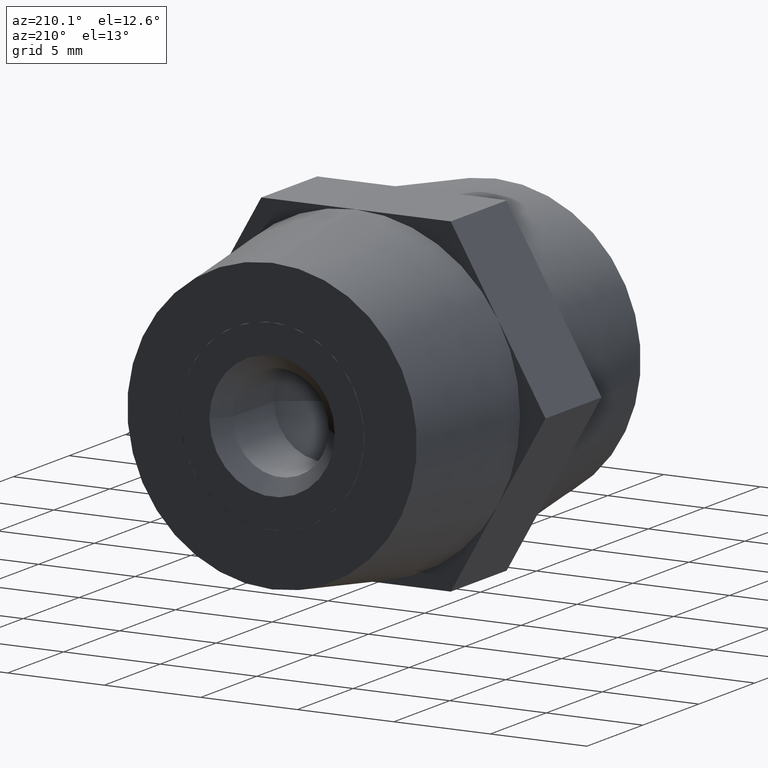
[diagram: clean part render]
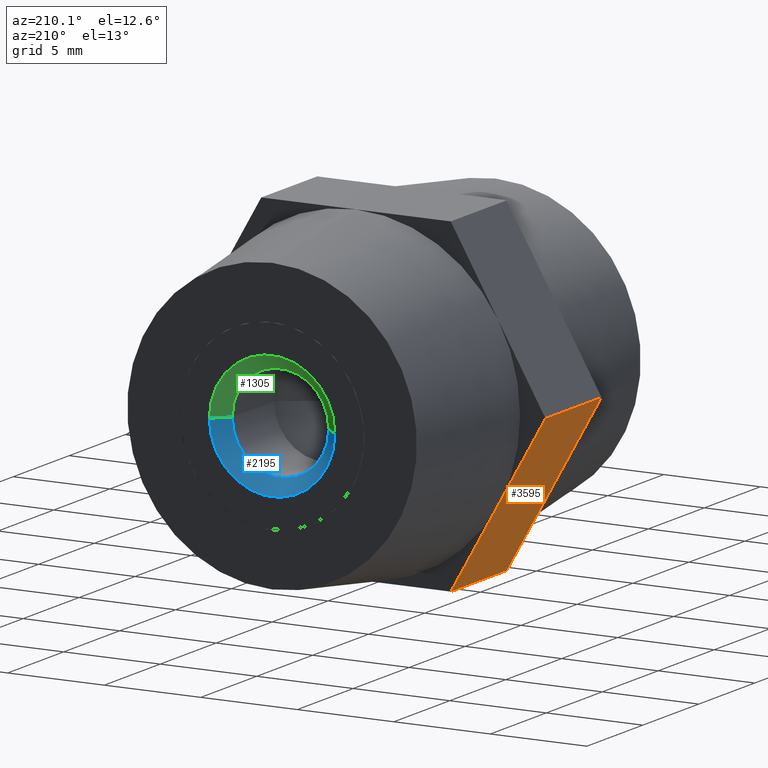
[diagram: same view with three faces highlighted in distinct colors, each labeled with its STEP entity id]
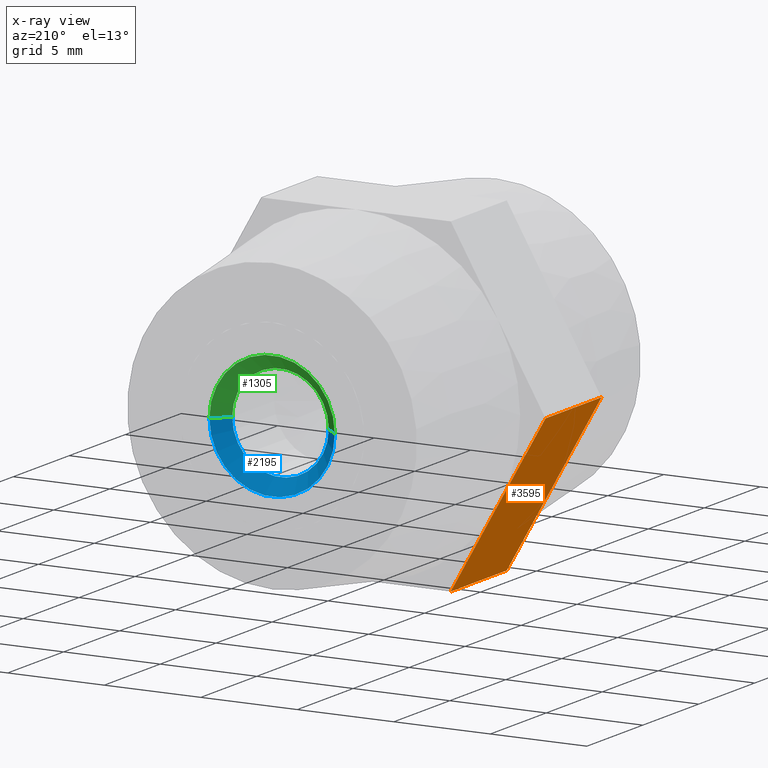
[diagram: x-ray of the same camera — body ghosted, the three highlighted faces saturated]
A machine part, auxiliary view with three faces highlighted in distinct colors.
The next image is the same camera in x-ray (body ghosted, the three faces saturated) — at least one of them is partly hidden behind the body in this view.
Their STEP definitions:

[orange] entity #3595 — the highlighted planar face has unit normal (0.866, 0, 0.5).
#23 = ORIENTED_EDGE ( 'NONE', *, *, #265, .F. ) ;
#265 = EDGE_CURVE ( 'NONE', #1611, #2452, #2037, .T. ) ;
#291 = LINE ( 'NONE', #2020, #3362 ) ;
#323 = VECTOR ( 'NONE', #2864, 1000.000000000000000 ) ;
#367 = CARTESIAN_POINT ( 'NONE',  ( -7.361215932167740000, 2.500000000000000000, -4.250000000000000000 ) ) ;
#526 = CARTESIAN_POINT ( 'NONE',  ( -4.907477288111829600, -2.500000000000000000, -8.500000000000000000 ) ) ;
#569 = ORIENTED_EDGE ( 'NONE', *, *, #1869, .F. ) ;
#702 = DIRECTION ( 'NONE',  ( 0.8660254037844387100, 0.0000000000000000000, 0.4999999999999998900 ) ) ;
#785 = DIRECTION ( 'NONE',  ( -0.4999999999999998900, 0.0000000000000000000, 0.8660254037844387100 ) ) ;
#838 = DIRECTION ( 'NONE',  ( -0.4999999999999998900, 0.0000000000000000000, 0.8660254037844387100 ) ) ;
#1032 = LINE ( 'NONE', #2004, #323 ) ;
#1154 = EDGE_CURVE ( 'NONE', #2302, #1245, #1694, .T. ) ;
#1158 = CARTESIAN_POINT ( 'NONE',  ( -4.907477288111829600, 2.500000000000000000, -8.500000000000000000 ) ) ;
#1167 = EDGE_LOOP ( 'NONE', ( #3575, #3605, #2105, #23, #569, #2167 ) ) ;
#1245 = VERTEX_POINT ( 'NONE', #1809 ) ;
#1294 = VERTEX_POINT ( 'NONE', #1846 ) ;
#1399 = VERTEX_POINT ( 'NONE', #3651 ) ;
#1611 = VERTEX_POINT ( 'NONE', #367 ) ;
#1683 = FACE_OUTER_BOUND ( 'NONE', #1167, .T. ) ;
#1694 = LINE ( 'NONE', #3196, #2163 ) ;
#1804 = EDGE_CURVE ( 'NONE', #1399, #1294, #3240, .T. ) ;
#1809 = CARTESIAN_POINT ( 'NONE',  ( -4.907477288111829600, -2.500000000000000000, -8.500000000000000000 ) ) ;
#1846 = CARTESIAN_POINT ( 'NONE',  ( -9.814954576223648500, -2.500000000000000000, 1.646851074874740100E-015 ) ) ;
#1866 = CARTESIAN_POINT ( 'NONE',  ( -9.814954576223648500, 2.500000000000000000, 1.646851074874740100E-015 ) ) ;
#1869 = EDGE_CURVE ( 'NONE', #2302, #1611, #291, .T. ) ;
#1946 = CARTESIAN_POINT ( 'NONE',  ( -4.907477288111829600, 2.500000000000000000, -8.500000000000000000 ) ) ;
#1981 = VECTOR ( 'NONE', #785, 1000.000000000000000 ) ;
#2004 = CARTESIAN_POINT ( 'NONE',  ( -9.814954576223648500, 2.500000000000000000, 1.646851074874740100E-015 ) ) ;
#2020 = CARTESIAN_POINT ( 'NONE',  ( -4.907477288111829600, 2.500000000000000000, -8.500000000000000000 ) ) ;
#2037 = LINE ( 'NONE', #2315, #3428 ) ;
#2105 = ORIENTED_EDGE ( 'NONE', *, *, #3670, .F. ) ;
#2163 = VECTOR ( 'NONE', #2965, 1000.000000000000000 ) ;
#2167 = ORIENTED_EDGE ( 'NONE', *, *, #1154, .T. ) ;
#2302 = VERTEX_POINT ( 'NONE', #1158 ) ;
#2315 = CARTESIAN_POINT ( 'NONE',  ( -4.907477288111829600, 2.500000000000000000, -8.500000000000000000 ) ) ;
#2452 = VERTEX_POINT ( 'NONE', #1866 ) ;
#2529 = DIRECTION ( 'NONE',  ( 0.4999999999999998900, 0.0000000000000000000, -0.8660254037844387100 ) ) ;
#2588 = DIRECTION ( 'NONE',  ( -0.4999999999999998900, 0.0000000000000000000, 0.8660254037844387100 ) ) ;
#2626 = DIRECTION ( 'NONE',  ( -0.4999999999999998900, 0.0000000000000000000, 0.8660254037844387100 ) ) ;
#2684 = EDGE_CURVE ( 'NONE', #1245, #1399, #3551, .T. ) ;
#2864 = DIRECTION ( 'NONE',  ( 0.0000000000000000000, -1.000000000000000000, 0.0000000000000000000 ) ) ;
#2965 = DIRECTION ( 'NONE',  ( 0.0000000000000000000, -1.000000000000000000, 0.0000000000000000000 ) ) ;
#3150 = CARTESIAN_POINT ( 'NONE',  ( -4.907477288111829600, -2.500000000000000000, -8.500000000000000000 ) ) ;
#3196 = CARTESIAN_POINT ( 'NONE',  ( -4.907477288111829600, 2.500000000000000000, -8.500000000000000000 ) ) ;
#3240 = LINE ( 'NONE', #526, #3461 ) ;
#3362 = VECTOR ( 'NONE', #2626, 1000.000000000000000 ) ;
#3370 = PLANE ( 'NONE',  #3711 ) ;
#3428 = VECTOR ( 'NONE', #2588, 1000.000000000000000 ) ;
#3461 = VECTOR ( 'NONE', #838, 1000.000000000000000 ) ;
#3551 = LINE ( 'NONE', #3150, #1981 ) ;
#3575 = ORIENTED_EDGE ( 'NONE', *, *, #2684, .T. ) ;
#3595 = ADVANCED_FACE ( 'NONE', ( #1683 ), #3370, .F. ) ;
#3605 = ORIENTED_EDGE ( 'NONE', *, *, #1804, .T. ) ;
#3651 = CARTESIAN_POINT ( 'NONE',  ( -7.361215932167730200, -2.500000000000000000, -4.250000000000000000 ) ) ;
#3670 = EDGE_CURVE ( 'NONE', #2452, #1294, #1032, .T. ) ;
#3711 = AXIS2_PLACEMENT_3D ( 'NONE', #1946, #702, #2529 ) ;

[blue] entity #2195 — the highlighted conical surface has half-angle 45 deg.
#12 = VECTOR ( 'NONE', #2967, 1000.000000000000000 ) ;
#183 = CARTESIAN_POINT ( 'NONE',  ( 0.0000000000000000000, 6.500000000000000000, 3.250000000000000000 ) ) ;
#282 = CARTESIAN_POINT ( 'NONE',  ( 3.980102097228897700E-016, 6.500000000000000000, -3.250000000000000000 ) ) ;
#373 = LINE ( 'NONE', #183, #3454 ) ;
#652 = CONICAL_SURFACE ( 'NONE', #3270, 3.250000000000000000, 0.7853981633974490600 ) ;
#819 = DIRECTION ( 'NONE',  ( 0.0000000000000000000, 0.7071067811865470200, 0.7071067811865480200 ) ) ;
#861 = DIRECTION ( 'NONE',  ( 0.0000000000000000000, 0.0000000000000000000, 1.000000000000000000 ) ) ;
#916 = VERTEX_POINT ( 'NONE', #3418 ) ;
#1082 = VERTEX_POINT ( 'NONE', #2484 ) ;
#1122 = DIRECTION ( 'NONE',  ( 0.0000000000000000000, 1.000000000000000000, 0.0000000000000000000 ) ) ;
#1421 = LINE ( 'NONE', #282, #12 ) ;
#1558 = CARTESIAN_POINT ( 'NONE',  ( 0.0000000000000000000, 6.500000000000000000, 0.0000000000000000000 ) ) ;
#1656 = ORIENTED_EDGE ( 'NONE', *, *, #3143, .F. ) ;
#1662 = EDGE_LOOP ( 'NONE', ( #3234, #3852, #2375, #1656 ) ) ;
#1747 = CARTESIAN_POINT ( 'NONE',  ( 3.061616997868383100E-016, 5.750000000000000000, -2.500000000000000000 ) ) ;
#1934 = DIRECTION ( 'NONE',  ( 0.0000000000000000000, 0.0000000000000000000, 1.000000000000000000 ) ) ;
#2030 = CARTESIAN_POINT ( 'NONE',  ( 0.0000000000000000000, 6.500000000000000000, 0.0000000000000000000 ) ) ;
#2056 = AXIS2_PLACEMENT_3D ( 'NONE', #2030, #1122, #861 ) ;
#2151 = CIRCLE ( 'NONE', #2056, 3.250000000000000000 ) ;
#2195 = ADVANCED_FACE ( 'NONE', ( #2814 ), #652, .F. ) ;
#2271 = CARTESIAN_POINT ( 'NONE',  ( 0.0000000000000000000, 6.500000000000000000, 3.250000000000000000 ) ) ;
#2289 = DIRECTION ( 'NONE',  ( 0.0000000000000000000, 0.0000000000000000000, 1.000000000000000000 ) ) ;
#2370 = VERTEX_POINT ( 'NONE', #1747 ) ;
#2375 = ORIENTED_EDGE ( 'NONE', *, *, #3175, .T. ) ;
#2412 = EDGE_CURVE ( 'NONE', #2370, #916, #1421, .T. ) ;
#2484 = CARTESIAN_POINT ( 'NONE',  ( 0.0000000000000000000, 5.750000000000000000, 2.500000000000000000 ) ) ;
#2578 = CARTESIAN_POINT ( 'NONE',  ( 0.0000000000000000000, 5.750000000000000000, 0.0000000000000000000 ) ) ;
#2814 = FACE_OUTER_BOUND ( 'NONE', #1662, .T. ) ;
#2856 = DIRECTION ( 'NONE',  ( 0.0000000000000000000, 1.000000000000000000, 0.0000000000000000000 ) ) ;
#2967 = DIRECTION ( 'NONE',  ( 8.659560562354939000E-017, 0.7071067811865470200, -0.7071067811865480200 ) ) ;
#2977 = AXIS2_PLACEMENT_3D ( 'NONE', #2578, #2856, #1934 ) ;
#3082 = EDGE_CURVE ( 'NONE', #2370, #1082, #3510, .T. ) ;
#3143 = EDGE_CURVE ( 'NONE', #1082, #3697, #373, .T. ) ;
#3175 = EDGE_CURVE ( 'NONE', #916, #3697, #2151, .T. ) ;
#3234 = ORIENTED_EDGE ( 'NONE', *, *, #3082, .F. ) ;
#3270 = AXIS2_PLACEMENT_3D ( 'NONE', #1558, #3357, #2289 ) ;
#3357 = DIRECTION ( 'NONE',  ( 0.0000000000000000000, 1.000000000000000000, 0.0000000000000000000 ) ) ;
#3418 = CARTESIAN_POINT ( 'NONE',  ( 3.980102097228897700E-016, 6.500000000000000000, -3.250000000000000000 ) ) ;
#3454 = VECTOR ( 'NONE', #819, 1000.000000000000000 ) ;
#3510 = CIRCLE ( 'NONE', #2977, 2.500000000000000000 ) ;
#3697 = VERTEX_POINT ( 'NONE', #2271 ) ;
#3852 = ORIENTED_EDGE ( 'NONE', *, *, #2412, .T. ) ;

[green] entity #1305 — the highlighted conical surface has half-angle 45 deg.
#11 = AXIS2_PLACEMENT_3D ( 'NONE', #2722, #3282, #2539 ) ;
#12 = VECTOR ( 'NONE', #2967, 1000.000000000000000 ) ;
#183 = CARTESIAN_POINT ( 'NONE',  ( 0.0000000000000000000, 6.500000000000000000, 3.250000000000000000 ) ) ;
#278 = ORIENTED_EDGE ( 'NONE', *, *, #2412, .F. ) ;
#282 = CARTESIAN_POINT ( 'NONE',  ( 3.980102097228897700E-016, 6.500000000000000000, -3.250000000000000000 ) ) ;
#363 = DIRECTION ( 'NONE',  ( 0.0000000000000000000, 0.0000000000000000000, 1.000000000000000000 ) ) ;
#373 = LINE ( 'NONE', #183, #3454 ) ;
#388 = AXIS2_PLACEMENT_3D ( 'NONE', #3524, #3245, #2683 ) ;
#402 = DIRECTION ( 'NONE',  ( 0.0000000000000000000, 1.000000000000000000, 0.0000000000000000000 ) ) ;
#460 = ORIENTED_EDGE ( 'NONE', *, *, #1911, .T. ) ;
#554 = ORIENTED_EDGE ( 'NONE', *, *, #3143, .T. ) ;
#561 = EDGE_CURVE ( 'NONE', #1082, #2370, #2363, .T. ) ;
#819 = DIRECTION ( 'NONE',  ( 0.0000000000000000000, 0.7071067811865470200, 0.7071067811865480200 ) ) ;
#916 = VERTEX_POINT ( 'NONE', #3418 ) ;
#1082 = VERTEX_POINT ( 'NONE', #2484 ) ;
#1305 = ADVANCED_FACE ( 'NONE', ( #1500 ), #3791, .F. ) ;
#1320 = AXIS2_PLACEMENT_3D ( 'NONE', #2182, #402, #363 ) ;
#1328 = CIRCLE ( 'NONE', #388, 3.250000000000000000 ) ;
#1421 = LINE ( 'NONE', #282, #12 ) ;
#1500 = FACE_OUTER_BOUND ( 'NONE', #2073, .T. ) ;
#1747 = CARTESIAN_POINT ( 'NONE',  ( 3.061616997868383100E-016, 5.750000000000000000, -2.500000000000000000 ) ) ;
#1911 = EDGE_CURVE ( 'NONE', #3697, #916, #1328, .T. ) ;
#2073 = EDGE_LOOP ( 'NONE', ( #278, #2939, #554, #460 ) ) ;
#2182 = CARTESIAN_POINT ( 'NONE',  ( 0.0000000000000000000, 6.500000000000000000, 0.0000000000000000000 ) ) ;
#2271 = CARTESIAN_POINT ( 'NONE',  ( 0.0000000000000000000, 6.500000000000000000, 3.250000000000000000 ) ) ;
#2363 = CIRCLE ( 'NONE', #11, 2.500000000000000000 ) ;
#2370 = VERTEX_POINT ( 'NONE', #1747 ) ;
#2412 = EDGE_CURVE ( 'NONE', #2370, #916, #1421, .T. ) ;
#2484 = CARTESIAN_POINT ( 'NONE',  ( 0.0000000000000000000, 5.750000000000000000, 2.500000000000000000 ) ) ;
#2539 = DIRECTION ( 'NONE',  ( 0.0000000000000000000, 0.0000000000000000000, 1.000000000000000000 ) ) ;
#2683 = DIRECTION ( 'NONE',  ( 0.0000000000000000000, 0.0000000000000000000, 1.000000000000000000 ) ) ;
#2722 = CARTESIAN_POINT ( 'NONE',  ( 0.0000000000000000000, 5.750000000000000000, 0.0000000000000000000 ) ) ;
#2939 = ORIENTED_EDGE ( 'NONE', *, *, #561, .F. ) ;
#2967 = DIRECTION ( 'NONE',  ( 8.659560562354939000E-017, 0.7071067811865470200, -0.7071067811865480200 ) ) ;
#3143 = EDGE_CURVE ( 'NONE', #1082, #3697, #373, .T. ) ;
#3245 = DIRECTION ( 'NONE',  ( 0.0000000000000000000, 1.000000000000000000, 0.0000000000000000000 ) ) ;
#3282 = DIRECTION ( 'NONE',  ( 0.0000000000000000000, 1.000000000000000000, 0.0000000000000000000 ) ) ;
#3418 = CARTESIAN_POINT ( 'NONE',  ( 3.980102097228897700E-016, 6.500000000000000000, -3.250000000000000000 ) ) ;
#3454 = VECTOR ( 'NONE', #819, 1000.000000000000000 ) ;
#3524 = CARTESIAN_POINT ( 'NONE',  ( 0.0000000000000000000, 6.500000000000000000, 0.0000000000000000000 ) ) ;
#3697 = VERTEX_POINT ( 'NONE', #2271 ) ;
#3791 = CONICAL_SURFACE ( 'NONE', #1320, 3.250000000000000000, 0.7853981633974490600 ) ;